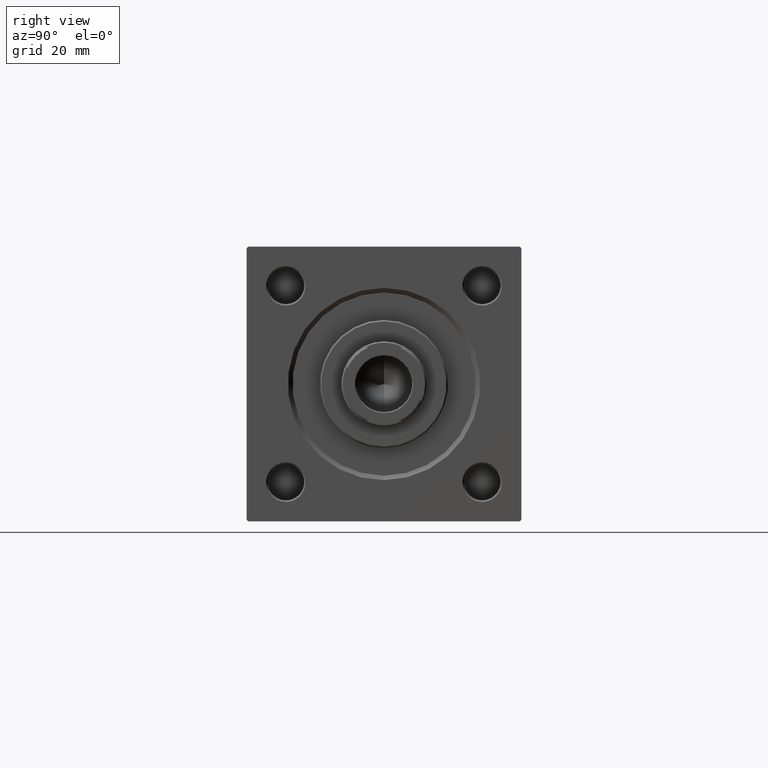
[diagram: clean part render]
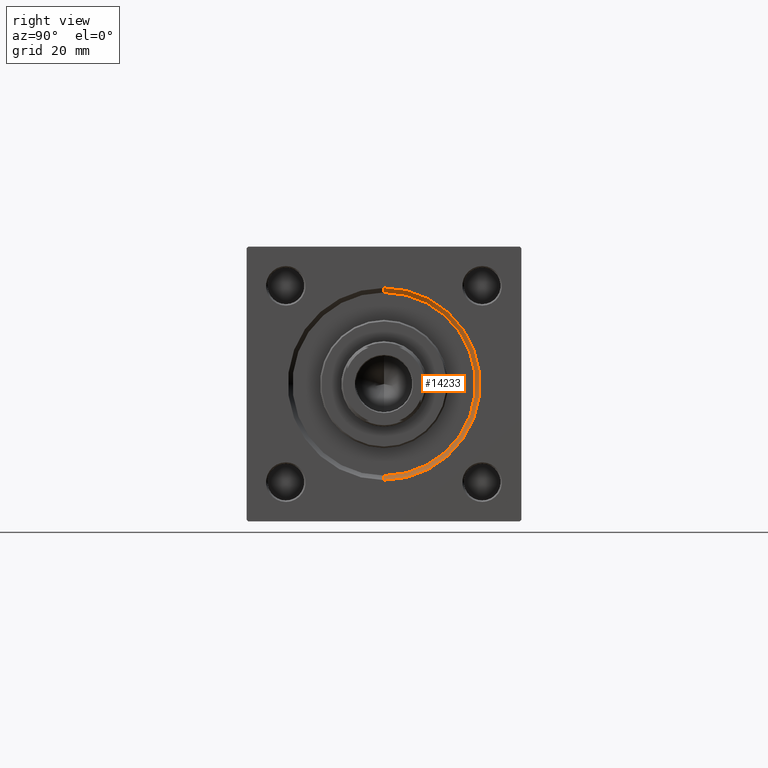
[diagram: same view with one face highlighted and labeled with its STEP entity id]
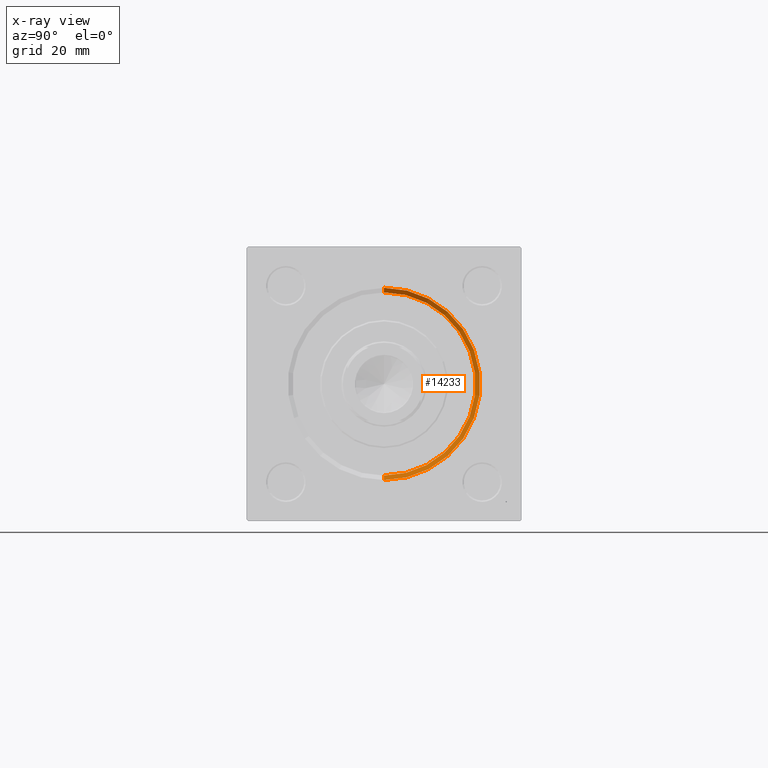
[diagram: x-ray of the same camera — body ghosted, the highlighted face saturated]
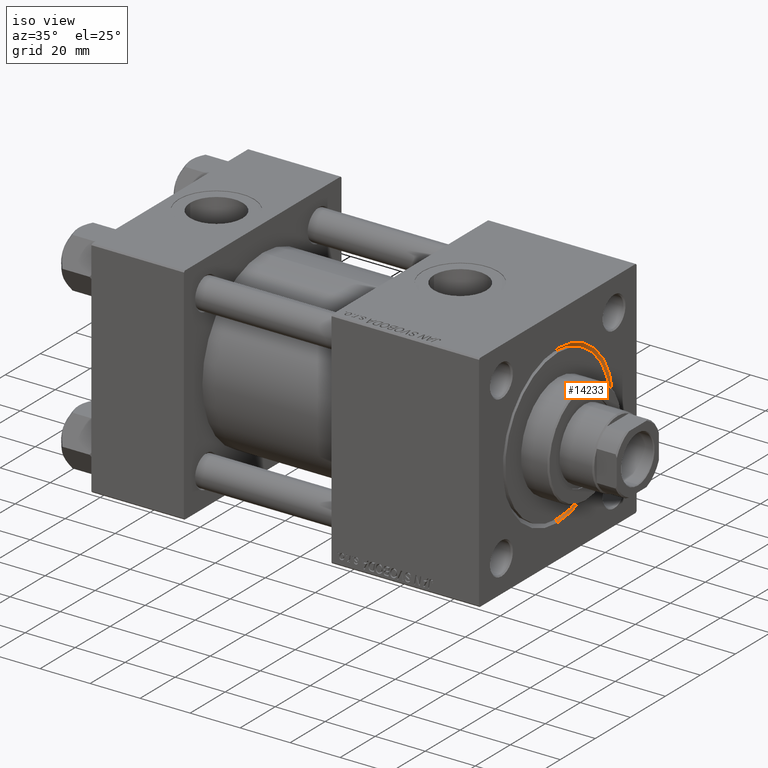
[diagram: same view with one face highlighted and labeled with its STEP entity id]
A machine part, right view. The second image highlights one B-rep face of the part: STEP entity #14233.
The next image is the same camera in x-ray: the body ghosted, the highlighted face saturated — about 0% of this face is hidden behind the body in this view.
A second angle (iso view) of the same face is appended — the face is thin or edge-on in the first view.
In plain terms, the highlighted conical surface has half-angle 45 deg.
Its self-contained STEP definition (entity closure, byte-faithful):
#303 = CONICAL_SURFACE ( 'NONE', #15703, 30.00000000000000000, 0.7853981633974482790 ) ;
#607 = LINE ( 'NONE', #27015, #16162 ) ;
#1163 = VERTEX_POINT ( 'NONE', #15862 ) ;
#2969 = ORIENTED_EDGE ( 'NONE', *, *, #5759, .F. ) ;
#4677 = EDGE_LOOP ( 'NONE', ( #2969, #40717, #29475, #15894 ) ) ;
#5017 = CARTESIAN_POINT ( 'NONE',  ( 155.0000000000000000, 0.000000000000000000, 0.000000000000000000 ) ) ;
#5759 = EDGE_CURVE ( 'NONE', #1163, #19877, #26539, .T. ) ;
#6576 = CARTESIAN_POINT ( 'NONE',  ( 153.5000000000000284, 0.000000000000000000, 0.000000000000000000 ) ) ;
#10368 = DIRECTION ( 'NONE',  ( 0.000000000000000000, 0.000000000000000000, 1.000000000000000000 ) ) ;
#11735 = CARTESIAN_POINT ( 'NONE',  ( 153.5000000000000284, 0.000000000000000000, -30.00000000000000000 ) ) ;
#13091 = CARTESIAN_POINT ( 'NONE',  ( 155.0000000000000000, 0.000000000000000000, -31.49999999999997158 ) ) ;
#14233 = ADVANCED_FACE ( 'NONE', ( #21343 ), #303, .F. ) ;
#14962 = VERTEX_POINT ( 'NONE', #11735 ) ;
#15703 = AXIS2_PLACEMENT_3D ( 'NONE', #17275, #33015, #48268 ) ;
#15862 = CARTESIAN_POINT ( 'NONE',  ( 153.5000000000000284, 3.673940397442059178E-15, 30.00000000000000000 ) ) ;
#15894 = ORIENTED_EDGE ( 'NONE', *, *, #17680, .F. ) ;
#16162 = VECTOR ( 'NONE', #31829, 1000.000000000000114 ) ;
#16424 = DIRECTION ( 'NONE',  ( 0.000000000000000000, 0.000000000000000000, 1.000000000000000000 ) ) ;
#17275 = CARTESIAN_POINT ( 'NONE',  ( 153.5000000000000284, 0.000000000000000000, 0.000000000000000000 ) ) ;
#17680 = EDGE_CURVE ( 'NONE', #19877, #49989, #42609, .T. ) ;
#19115 = AXIS2_PLACEMENT_3D ( 'NONE', #5017, #31426, #16424 ) ;
#19877 = VERTEX_POINT ( 'NONE', #39252 ) ;
#21343 = FACE_OUTER_BOUND ( 'NONE', #4677, .T. ) ;
#24326 = VECTOR ( 'NONE', #33896, 1000.000000000000114 ) ;
#26539 = LINE ( 'NONE', #37705, #24326 ) ;
#27015 = CARTESIAN_POINT ( 'NONE',  ( 153.5000000000000284, 0.000000000000000000, -30.00000000000000000 ) ) ;
#29171 = DIRECTION ( 'NONE',  ( 1.000000000000000000, 0.000000000000000000, 0.000000000000000000 ) ) ;
#29475 = ORIENTED_EDGE ( 'NONE', *, *, #33364, .T. ) ;
#31426 = DIRECTION ( 'NONE',  ( -1.000000000000000000, 0.000000000000000000, -0.000000000000000000 ) ) ;
#31829 = DIRECTION ( 'NONE',  ( 0.7071067811865474617, 0.000000000000000000, -0.7071067811865474617 ) ) ;
#33015 = DIRECTION ( 'NONE',  ( 1.000000000000000000, 0.000000000000000000, 0.000000000000000000 ) ) ;
#33364 = EDGE_CURVE ( 'NONE', #14962, #49989, #607, .T. ) ;
#33896 = DIRECTION ( 'NONE',  ( 0.7071067811865474617, 8.659560562354932858E-17, 0.7071067811865474617 ) ) ;
#35305 = AXIS2_PLACEMENT_3D ( 'NONE', #6576, #29171, #10368 ) ;
#37705 = CARTESIAN_POINT ( 'NONE',  ( 153.5000000000000284, 3.673940397442059178E-15, 30.00000000000000000 ) ) ;
#38573 = CIRCLE ( 'NONE', #35305, 30.00000000000000000 ) ;
#39252 = CARTESIAN_POINT ( 'NONE',  ( 155.0000000000000000, 3.857637417314158745E-15, 31.49999999999997158 ) ) ;
#40717 = ORIENTED_EDGE ( 'NONE', *, *, #45098, .F. ) ;
#42609 = CIRCLE ( 'NONE', #19115, 31.49999999999997158 ) ;
#45098 = EDGE_CURVE ( 'NONE', #14962, #1163, #38573, .T. ) ;
#48268 = DIRECTION ( 'NONE',  ( 0.000000000000000000, 0.000000000000000000, -1.000000000000000000 ) ) ;
#49989 = VERTEX_POINT ( 'NONE', #13091 ) ;